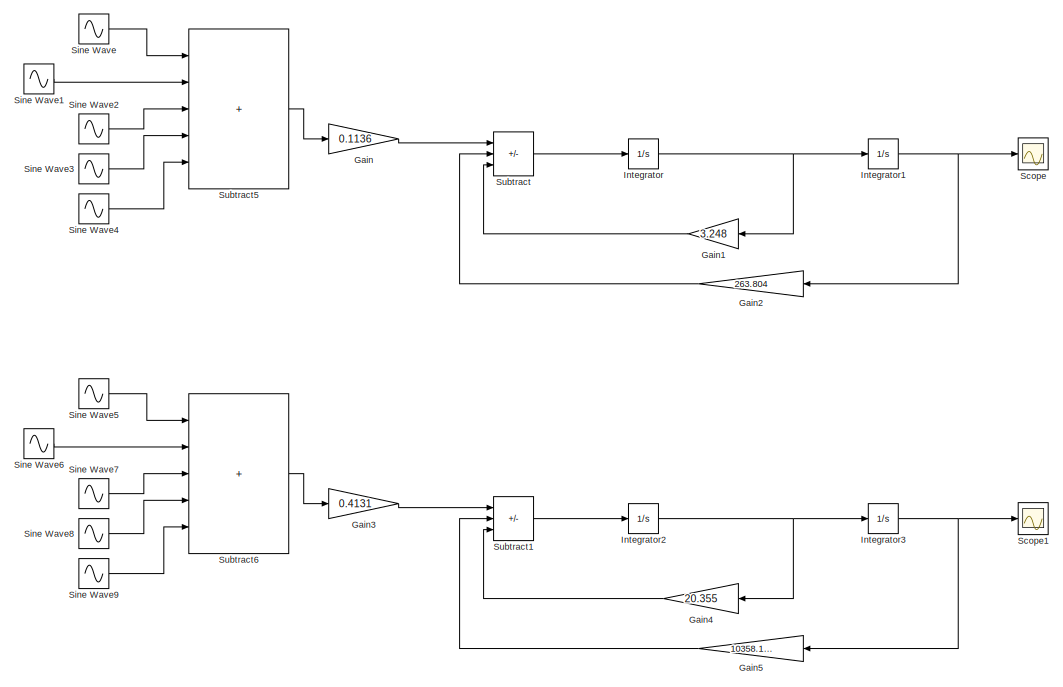
[diagram: root canvas - part 1/4, top left region]
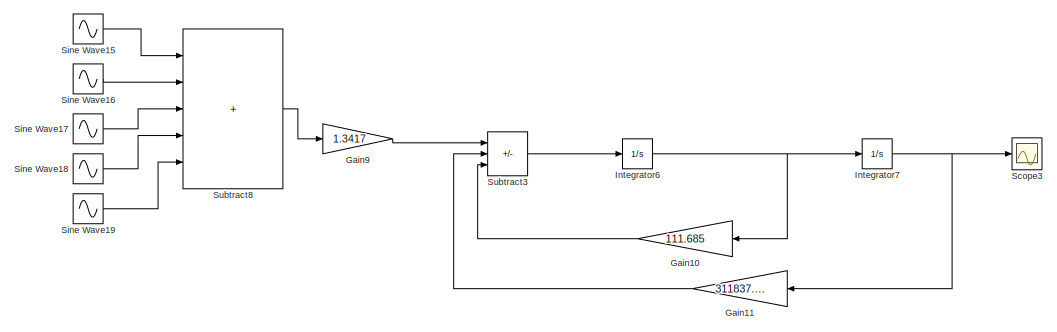
[diagram: root canvas - part 2/4, top right region]
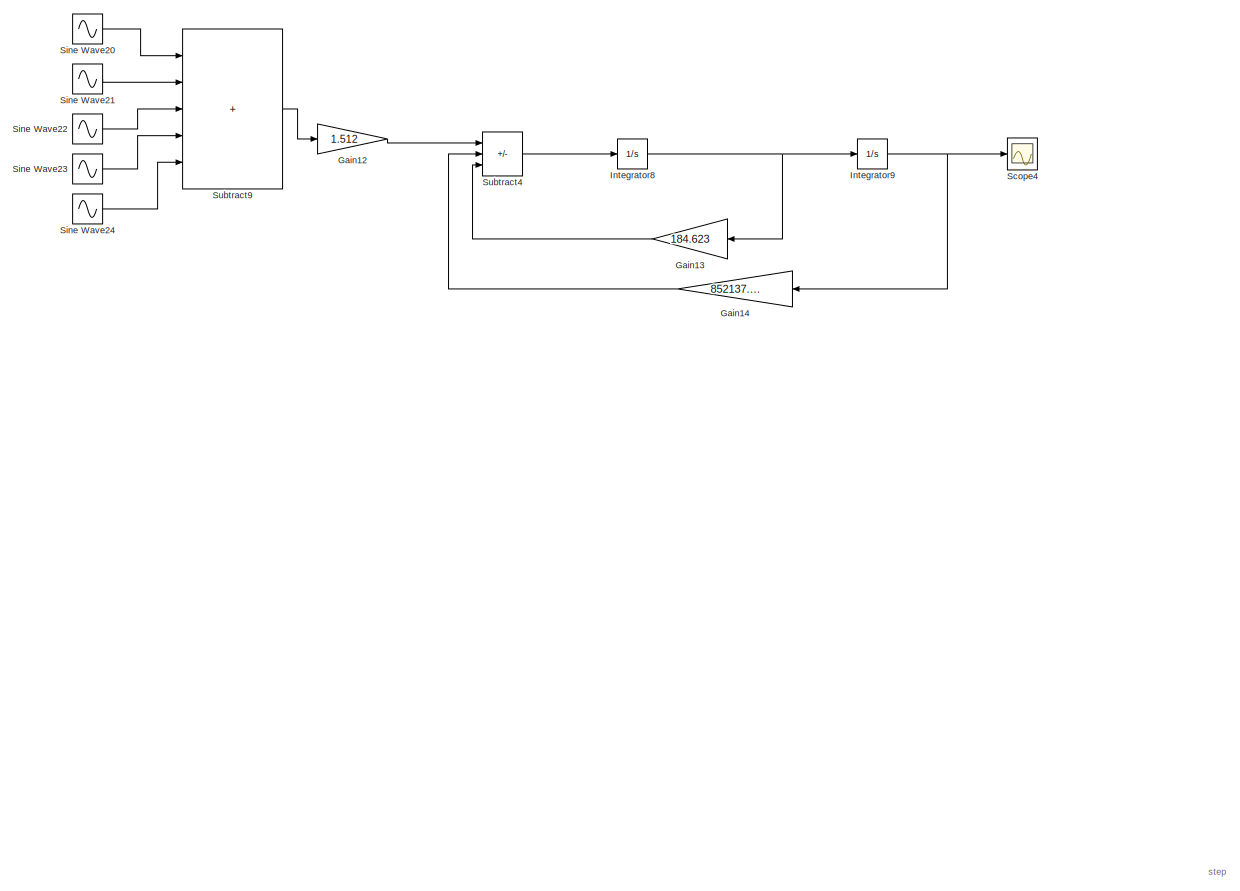
[diagram: root canvas - part 3/4, middle right region]
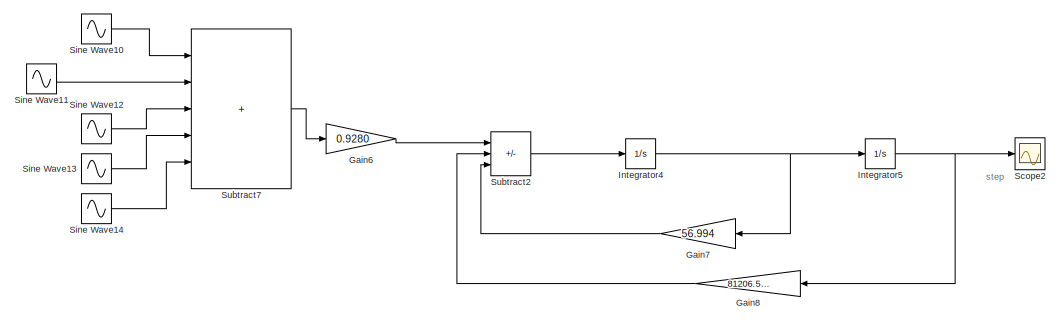
[diagram: root canvas - part 4/4, bottom left region]
MODEL slx_b2e228cac589
KIND model
CONFIG AbsTol = auto
CONFIG EnableMultiTasking = off
CONFIG FixedStep = auto
CONFIG MaxStep = auto
CONFIG MinStep = auto
CONFIG RelTol = 1e-3
CONFIG SampleTimeConstraint = Unconstrained
CONFIG SolverName = VariableStepAuto
CONFIG StartTime = 0.0
CONFIG StopTime = 10.0
BLOCK [Gain] Gain
  Gain = 0.1136
BLOCK [Gain] Gain1
  Gain = 3.248
BLOCK [Gain] Gain10
  Gain = 111.685
BLOCK [Gain] Gain11
  Gain = 311837.785
BLOCK [Gain] Gain12
  Gain = 1.512
BLOCK [Gain] Gain13
  Gain = 184.623
BLOCK [Gain] Gain14
  Gain = 852137.646
BLOCK [Gain] Gain2
  Gain = 263.804
BLOCK [Gain] Gain3
  Gain = 0.4131
BLOCK [Gain] Gain4
  Gain = 20.355
BLOCK [Gain] Gain5
  Gain = 10358.158
BLOCK [Gain] Gain6
  Gain = 0.9280
BLOCK [Gain] Gain7
  Gain = 56.994
BLOCK [Gain] Gain8
  Gain = 81206.525
BLOCK [Gain] Gain9
  Gain = 1.3417
BLOCK [Integrator] Integrator
BLOCK [Integrator] Integrator1
BLOCK [Integrator] Integrator2
BLOCK [Integrator] Integrator3
BLOCK [Integrator] Integrator4
BLOCK [Integrator] Integrator5
BLOCK [Integrator] Integrator6
BLOCK [Integrator] Integrator7
BLOCK [Integrator] Integrator8
BLOCK [Integrator] Integrator9
BLOCK [Scope] Scope
  Floating = off
  NumInputPorts = 1
  ScopeSpecificationString = Simulink.scopes.TimeScopeBlockCfg('CurrentConfiguration', extmgr.ConfigurationSet(extmgr.Configuration('Core','General UI',true),extmgr.Configuration('Core','Source UI',true),extmgr.Configuration('Sources','WiredSimulink',true,'DataLoggingVariableName','ScopeData1'),extmgr.Configuration('Visuals','Time Domain',true,'SerializedDisplays',{struct('MinYLimReal','-0.00271','MaxYLimReal','0.00271','YLab...<+1401ch>
BLOCK [Scope] Scope1
  Floating = off
  NumInputPorts = 1
  ScopeSpecificationString = Simulink.scopes.TimeScopeBlockCfg('CurrentConfiguration', extmgr.ConfigurationSet(extmgr.Configuration('Core','General UI',true),extmgr.Configuration('Core','Source UI',true),extmgr.Configuration('Sources','WiredSimulink',true,'DataLoggingVariableName','ScopeData2'),extmgr.Configuration('Visuals','Time Domain',true,'SerializedDisplays',{struct('MinYLimReal','-0.00031','MaxYLimReal','0.00031','YLab...<+1403ch>
BLOCK [Scope] Scope2
  Floating = off
  NumInputPorts = 1
  ScopeSpecificationString = Simulink.scopes.TimeScopeBlockCfg('CurrentConfiguration', extmgr.ConfigurationSet(extmgr.Configuration('Core','General UI',true),extmgr.Configuration('Core','Source UI',true),extmgr.Configuration('Sources','WiredSimulink',true,'DataLoggingVariableName','ScopeData3'),extmgr.Configuration('Visuals','Time Domain',true,'SerializedDisplays',{struct('MinYLimReal','-0.00011','MaxYLimReal','0.00011','YLab...<+1403ch>
BLOCK [Scope] Scope3
  Floating = off
  NumInputPorts = 1
  ScopeSpecificationString = Simulink.scopes.TimeScopeBlockCfg('CurrentConfiguration', extmgr.ConfigurationSet(extmgr.Configuration('Core','General UI',true),extmgr.Configuration('Core','Source UI',true),extmgr.Configuration('Sources','WiredSimulink',true,'DataLoggingVariableName','ScopeData4'),extmgr.Configuration('Visuals','Time Domain',true,'SerializedDisplays',{struct('MinYLimReal','-0.000009','MaxYLimReal','0.000009','YL...<+1430ch>
BLOCK [Scope] Scope4
  Floating = off
  NumInputPorts = 1
  ScopeSpecificationString = Simulink.scopes.TimeScopeBlockCfg('CurrentConfiguration', extmgr.ConfigurationSet(extmgr.Configuration('Core','General UI',true),extmgr.Configuration('Core','Source UI',true),extmgr.Configuration('Sources','WiredSimulink',true),extmgr.Configuration('Visuals','Time Domain',true,'SerializedDisplays',{struct('MinYLimReal','0.0000035','MaxYLimReal','0.0000046','YLabelReal','','MinYLimMag','0.0000035',...<+1397ch>
BLOCK [Sin] Sine Wave
  Frequency = 16.2338
  SampleTime = 0
BLOCK [Sin] Sine Wave1
  Frequency = 101.72344
  SampleTime = 0
BLOCK [Sin] Sine Wave10
  Frequency = 16.2338
  SampleTime = 0
BLOCK [Sin] Sine Wave11
  Frequency = 101.72344
  SampleTime = 0
BLOCK [Sin] Sine Wave12
  Frequency = 284.82312
  SampleTime = 0
BLOCK [Sin] Sine Wave13
  Frequency = 558.14128
  SampleTime = 0
BLOCK [Sin] Sine Wave14
  Frequency = 922.64504
  SampleTime = 0
BLOCK [Sin] Sine Wave15
  Frequency = 16.2338
  SampleTime = 0.01
BLOCK [Sin] Sine Wave16
  Frequency = 101.72344
  SampleTime = 0.01
BLOCK [Sin] Sine Wave17
  Frequency = 284.82312
  SampleTime = 0.01
BLOCK [Sin] Sine Wave18
  Frequency = 558.14128
  SampleTime = 0.01
BLOCK [Sin] Sine Wave19
  Frequency = 922.64504
  SampleTime = 0.01
BLOCK [Sin] Sine Wave2
  Frequency = 284.82312
  SampleTime = 0
BLOCK [Sin] Sine Wave20
  Frequency = 16.2338
  SampleTime = 0.1
BLOCK [Sin] Sine Wave21
  Frequency = 101.72344
  SampleTime = 0.1
BLOCK [Sin] Sine Wave22
  Frequency = 284.82312
  SampleTime = 0.1
BLOCK [Sin] Sine Wave23
  Frequency = 558.14128
  SampleTime = 0.1
BLOCK [Sin] Sine Wave24
  Frequency = 922.64504
  SampleTime = 0.1
BLOCK [Sin] Sine Wave3
  Frequency = 558.14128
  SampleTime = 0
BLOCK [Sin] Sine Wave4
  Frequency = 922.64504
  SampleTime = 0
BLOCK [Sin] Sine Wave5
  Frequency = 16.2338
  SampleTime = 0
BLOCK [Sin] Sine Wave6
  Frequency = 101.72344
  SampleTime = 0
BLOCK [Sin] Sine Wave7
  Frequency = 284.82312
  SampleTime = 0
BLOCK [Sin] Sine Wave8
  Frequency = 558.14128
  SampleTime = 0
BLOCK [Sin] Sine Wave9
  Frequency = 922.64504
  SampleTime = 0
BLOCK [Sum] Subtract
  IconShape = rectangular
  Inputs = +--
BLOCK [Sum] Subtract1
  IconShape = rectangular
  Inputs = +--
BLOCK [Sum] Subtract2
  IconShape = rectangular
  Inputs = +--
BLOCK [Sum] Subtract3
  IconShape = rectangular
  Inputs = +--
BLOCK [Sum] Subtract4
  IconShape = rectangular
  Inputs = +--
BLOCK [Sum] Subtract5
  IconShape = rectangular
  Inputs = +++++
BLOCK [Sum] Subtract6
  IconShape = rectangular
  Inputs = +++++
BLOCK [Sum] Subtract7
  IconShape = rectangular
  Inputs = +++++
BLOCK [Sum] Subtract8
  IconShape = rectangular
  Inputs = +++++
BLOCK [Sum] Subtract9
  IconShape = rectangular
  Inputs = +++++
ANNOTATION (root): step
LINE Gain10:1 -> Subtract3:3
LINE Gain11:1 -> Subtract3:2
LINE Gain12:1 -> Subtract4:1
LINE Gain13:1 -> Subtract4:3
LINE Gain14:1 -> Subtract4:2
LINE Gain1:1 -> Subtract:3
LINE Gain2:1 -> Subtract:2
LINE Gain3:1 -> Subtract1:1
LINE Gain4:1 -> Subtract1:3
LINE Gain5:1 -> Subtract1:2
LINE Gain6:1 -> Subtract2:1
LINE Gain7:1 -> Subtract2:3
LINE Gain8:1 -> Subtract2:2
LINE Gain9:1 -> Subtract3:1
LINE Gain:1 -> Subtract:1
NET Integrator1:1 -> Gain2:1, Scope:1
NET Integrator2:1 -> Gain4:1, Integrator3:1
NET Integrator3:1 -> Gain5:1, Scope1:1
NET Integrator4:1 -> Gain7:1, Integrator5:1
NET Integrator5:1 -> Gain8:1, Scope2:1
NET Integrator6:1 -> Gain10:1, Integrator7:1
NET Integrator7:1 -> Gain11:1, Scope3:1
NET Integrator8:1 -> Gain13:1, Integrator9:1
NET Integrator9:1 -> Gain14:1, Scope4:1
NET Integrator:1 -> Gain1:1, Integrator1:1
LINE Sine Wave10:1 -> Subtract7:1
LINE Sine Wave11:1 -> Subtract7:2
LINE Sine Wave12:1 -> Subtract7:3
LINE Sine Wave13:1 -> Subtract7:4
LINE Sine Wave14:1 -> Subtract7:5
LINE Sine Wave15:1 -> Subtract8:1
LINE Sine Wave16:1 -> Subtract8:2
LINE Sine Wave17:1 -> Subtract8:3
LINE Sine Wave18:1 -> Subtract8:4
LINE Sine Wave19:1 -> Subtract8:5
LINE Sine Wave1:1 -> Subtract5:2
LINE Sine Wave20:1 -> Subtract9:1
LINE Sine Wave21:1 -> Subtract9:2
LINE Sine Wave22:1 -> Subtract9:3
LINE Sine Wave23:1 -> Subtract9:4
LINE Sine Wave24:1 -> Subtract9:5
LINE Sine Wave2:1 -> Subtract5:3
LINE Sine Wave3:1 -> Subtract5:4
LINE Sine Wave4:1 -> Subtract5:5
LINE Sine Wave5:1 -> Subtract6:1
LINE Sine Wave6:1 -> Subtract6:2
LINE Sine Wave7:1 -> Subtract6:3
LINE Sine Wave8:1 -> Subtract6:4
LINE Sine Wave9:1 -> Subtract6:5
LINE Sine Wave:1 -> Subtract5:1
LINE Subtract1:1 -> Integrator2:1
LINE Subtract2:1 -> Integrator4:1
LINE Subtract3:1 -> Integrator6:1
LINE Subtract4:1 -> Integrator8:1
LINE Subtract5:1 -> Gain:1
LINE Subtract6:1 -> Gain3:1
LINE Subtract7:1 -> Gain6:1
LINE Subtract8:1 -> Gain9:1
LINE Subtract9:1 -> Gain12:1
LINE Subtract:1 -> Integrator:1
note: NET lines group one-source signal fan-out (src -> all destinations, sorted); 1:1 wires keep LINE
